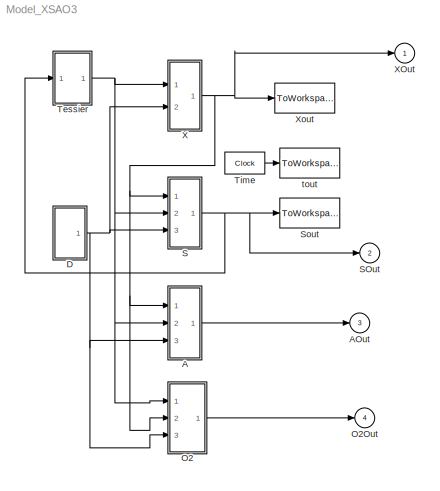
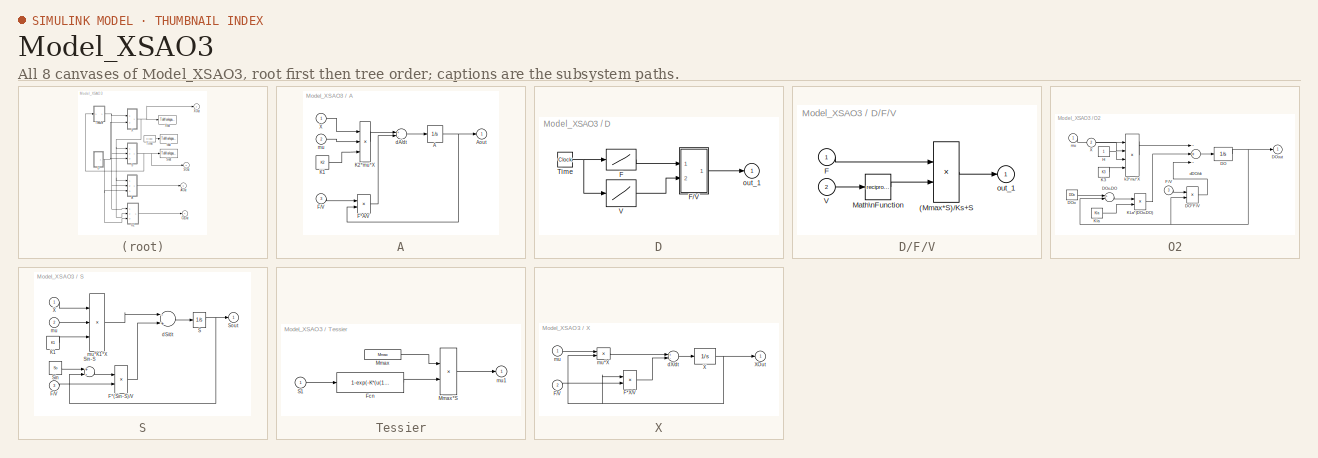
[diagram: thumbnail index - all 8 canvases of the model, root first then tree order]
MODEL Model_XSAO3
KIND model
BLOCK [SubSystem] A
  FunctionWithSeparateData = off
  MinAlgLoopOccurrences = off
  Ports = [3, 1]
  RTWSystemCode = Auto
  ShowPortLabels = none
BLOCK [Integrator] A/A
  InitialCondition = Ad(1)
  Ports = [1, 1]
BLOCK [Outport] A/Aout
  IconDisplay = Port number
BLOCK [Product] A/F*A//V
  Ports = [2, 1]
BLOCK [Inport] A/F//V
  IconDisplay = Port number
  Port = 3
BLOCK [Constant] A/K1
  Value = K2
BLOCK [Product] A/K2*mu*X
  Inputs = 3
  Ports = [3, 1]
BLOCK [Inport] A/X
  IconDisplay = Port number
BLOCK [Sum] A/dA//dt
  Inputs = +-
  Ports = [2, 1]
BLOCK [Inport] A/mu
  IconDisplay = Port number
  Port = 2
BLOCK [Outport] AOut
  IconDisplay = Port number
  Port = 3
BLOCK [SubSystem] D
  FunctionWithSeparateData = off
  MinAlgLoopOccurrences = off
  Ports = [0, 1]
  RTWSystemCode = Auto
  ShowPortLabels = none
BLOCK [Lookup] D/F
  InputValues = t
  Table = F
BLOCK [SubSystem] D/F//V
  FunctionWithSeparateData = off
  MaskDescription = Division of two scalars. y=u[1]/u[2]
  MaskDisplay = disp('/')
  MaskHelp = Division of two scalars: y=u[1]/u[2]
  MaskIconFrame = on
  MaskIconOpaque = on
  MaskIconRotate = none
  MaskIconUnits = autoscale
  MaskType = /
  MinAlgLoopOccurrences = off
  Ports = [2, 1]
  RTWSystemCode = Auto
  ShowPortLabels = none
BLOCK [Product] D/F//V/(Mmax*S)//Ks+S
  Ports = [2, 1]
BLOCK [Inport] D/F//V/F
  IconDisplay = Port number
BLOCK [Math] D/F//V/Math\nFunction
  Operator = reciprocal
  Ports = [1, 1]
BLOCK [Inport] D/F//V/V
  IconDisplay = Port number
  Port = 2
BLOCK [Outport] D/F//V/out_1
  IconDisplay = Port number
BLOCK [Clock] D/Time
  Decimation = 10
BLOCK [Lookup] D/V
  InputValues = t
  Table = V
BLOCK [Outport] D/out_1
  IconDisplay = Port number
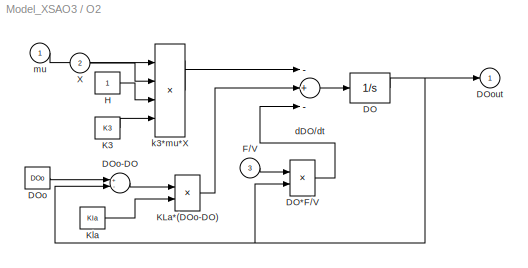
BLOCK [SubSystem] O2
  FunctionWithSeparateData = off
  MinAlgLoopOccurrences = off
  Ports = [3, 1]
  RTWSystemCode = Auto
  ShowPortLabels = none
BLOCK [Integrator] O2/DO
  InitialCondition = DOd(1)
  LowerSaturationLimit = 0
  Ports = [1, 1]
  UpperSaturationLimit = 1000
BLOCK [Product] O2/DO*F//V
  Ports = [2, 1]
BLOCK [Constant] O2/DOo
  Value = DOo
BLOCK [Sum] O2/DOo-DO
  Inputs = +-
  Ports = [2, 1]
BLOCK [Outport] O2/DOout
  IconDisplay = Port number
BLOCK [Inport] O2/F//V
  IconDisplay = Port number
  Port = 3
BLOCK [Constant] O2/H
BLOCK [Constant] O2/K3
  Value = K3
BLOCK [Product] O2/KLa*(DOo-DO)
  Ports = [2, 1]
BLOCK [Constant] O2/Kla
  Value = Kla
BLOCK [Inport] O2/X
  IconDisplay = Port number
  Port = 2
BLOCK [Sum] O2/dDO//dt
  Inputs = -+-
  Ports = [3, 1]
BLOCK [Product] O2/k3*mu*X
  Inputs = 4
  Ports = [4, 1]
BLOCK [Inport] O2/mu
  IconDisplay = Port number
BLOCK [Outport] O2Out
  IconDisplay = Port number
  Port = 4
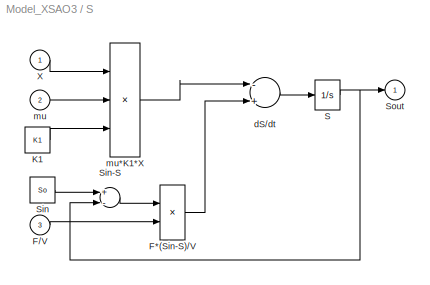
BLOCK [SubSystem] S
  FunctionWithSeparateData = off
  MinAlgLoopOccurrences = off
  Ports = [3, 1]
  RTWSystemCode = Auto
  ShowPortLabels = none
BLOCK [Product] S/F*(Sin-S)//V
  Ports = [2, 1]
BLOCK [Inport] S/F//V
  IconDisplay = Port number
  Port = 3
BLOCK [Constant] S/K1
  Value = K1
BLOCK [Integrator] S/S
  InitialCondition = Sd(1)
  LowerSaturationLimit = 0
  Ports = [1, 1]
  UpperSaturationLimit = 1000
BLOCK [Constant] S/Sin
  Value = So
BLOCK [Sum] S/Sin-S
  Inputs = +-
  Ports = [2, 1]
BLOCK [Outport] S/Sout
  IconDisplay = Port number
BLOCK [Inport] S/X
  IconDisplay = Port number
BLOCK [Sum] S/dS//dt
  Inputs = -+
  Ports = [2, 1]
BLOCK [Inport] S/mu
  IconDisplay = Port number
  Port = 2
BLOCK [Product] S/mu*K1*X
  Inputs = 3
  Ports = [3, 1]
BLOCK [Outport] SOut
  IconDisplay = Port number
  Port = 2
BLOCK [ToWorkspace] Sout
  SampleTime = -1
  SaveFormat = Array
  VariableName = Sout
BLOCK [SubSystem] Tessier
  FunctionWithSeparateData = off
  MaskIconFrame = on
  MaskIconOpaque = on
  MaskIconRotate = none
  MaskIconUnits = autoscale
  MinAlgLoopOccurrences = off
  Ports = [1, 1]
  RTWSystemCode = Auto
  ShowPortLabels = none
BLOCK [Fcn] Tessier/Fcn
  Expr = 1-exp(-K*(u(1)))
BLOCK [Constant] Tessier/Mmax
  Value = Mmax
BLOCK [Product] Tessier/Mmax*S
  CollapseMode = All dimensions
  Ports = [2, 1]
BLOCK [Inport] Tessier/S1
  IconDisplay = Port number
BLOCK [Outport] Tessier/mu1
  IconDisplay = Port number
BLOCK [Clock] Time
  Decimation = 10
  DisplayTime = on
BLOCK [SubSystem] X
  FunctionWithSeparateData = off
  MinAlgLoopOccurrences = off
  Ports = [2, 1]
  RTWSystemCode = Auto
  ShowPortLabels = none
BLOCK [Product] X/F*X//V
  Ports = [2, 1]
BLOCK [Inport] X/F//V
  IconDisplay = Port number
  Port = 2
BLOCK [Integrator] X/X
  InitialCondition = Xd(1)
  LowerSaturationLimit = 0
  Ports = [1, 1]
  UpperSaturationLimit = 1000
BLOCK [Outport] X/XOut
  IconDisplay = Port number
BLOCK [Sum] X/dX//dt
  Inputs = +-
  Ports = [2, 1]
BLOCK [Inport] X/mu
  IconDisplay = Port number
BLOCK [Product] X/mu*X
  Ports = [2, 1]
BLOCK [Outport] XOut
  IconDisplay = Port number
BLOCK [ToWorkspace] Xout
  SampleTime = -1
  SaveFormat = Array
  VariableName = Xout
BLOCK [ToWorkspace] tout
  SampleTime = -1
  SaveFormat = Array
  VariableName = tout
NET A/A:1 -> A/Aout:1, A/F*A//V:2
LINE A/F*A//V:1 -> A/dA//dt:2
LINE A/F//V:1 -> A/F*A//V:1
LINE A/K1:1 -> A/K2*mu*X:3
LINE A/K2*mu*X:1 -> A/dA//dt:1
LINE A/X:1 -> A/K2*mu*X:1
LINE A/dA//dt:1 -> A/A:1
LINE A/mu:1 -> A/K2*mu*X:2
LINE A:1 -> AOut:1
LINE D/F//V/(Mmax*S)//Ks+S:1 -> D/F//V/out_1:1
LINE D/F//V/F:1 -> D/F//V/(Mmax*S)//Ks+S:1
LINE D/F//V/Math\nFunction:1 -> D/F//V/(Mmax*S)//Ks+S:2
LINE D/F//V/V:1 -> D/F//V/Math\nFunction:1
LINE D/F//V:1 -> D/out_1:1
LINE D/F:1 -> D/F//V:1
NET D/Time:1 -> D/F:1, D/V:1
LINE D/V:1 -> D/F//V:2
NET D:1 -> A:3, O2:3, S:3, X:2
LINE O2/DO*F//V:1 -> O2/dDO//dt:3
NET O2/DO:1 -> O2/DO*F//V:2, O2/DOo-DO:2, O2/DOout:1
LINE O2/DOo-DO:1 -> O2/KLa*(DOo-DO):1
LINE O2/DOo:1 -> O2/DOo-DO:1
LINE O2/F//V:1 -> O2/DO*F//V:1
LINE O2/H:1 -> O2/k3*mu*X:3
LINE O2/K3:1 -> O2/k3*mu*X:4
LINE O2/KLa*(DOo-DO):1 -> O2/dDO//dt:2
LINE O2/Kla:1 -> O2/KLa*(DOo-DO):2
LINE O2/X:1 -> O2/k3*mu*X:2
LINE O2/dDO//dt:1 -> O2/DO:1
LINE O2/k3*mu*X:1 -> O2/dDO//dt:1
LINE O2/mu:1 -> O2/k3*mu*X:1
LINE O2:1 -> O2Out:1
LINE S/F*(Sin-S)//V:1 -> S/dS//dt:2
LINE S/F//V:1 -> S/F*(Sin-S)//V:2
LINE S/K1:1 -> S/mu*K1*X:3
NET S/S:1 -> S/Sin-S:2, S/Sout:1
LINE S/Sin-S:1 -> S/F*(Sin-S)//V:1
LINE S/Sin:1 -> S/Sin-S:1
LINE S/X:1 -> S/mu*K1*X:1
LINE S/dS//dt:1 -> S/S:1
LINE S/mu*K1*X:1 -> S/dS//dt:1
LINE S/mu:1 -> S/mu*K1*X:2
NET S:1 -> SOut:1, Sout:1, Tessier:1
LINE Tessier/Fcn:1 -> Tessier/Mmax*S:2
LINE Tessier/Mmax*S:1 -> Tessier/mu1:1
LINE Tessier/Mmax:1 -> Tessier/Mmax*S:1
LINE Tessier/S1:1 -> Tessier/Fcn:1
NET Tessier:1 -> A:2, O2:1, S:2, X:1
LINE Time:1 -> tout:1
LINE X/F*X//V:1 -> X/dX//dt:2
LINE X/F//V:1 -> X/F*X//V:2
NET X/X:1 -> X/F*X//V:1, X/XOut:1, X/mu*X:2
LINE X/dX//dt:1 -> X/X:1
LINE X/mu*X:1 -> X/dX//dt:1
LINE X/mu:1 -> X/mu*X:1
NET X:1 -> A:1, O2:2, S:1, XOut:1, Xout:1
note: NET lines group one-source signal fan-out (src -> all destinations, sorted); 1:1 wires keep LINE
